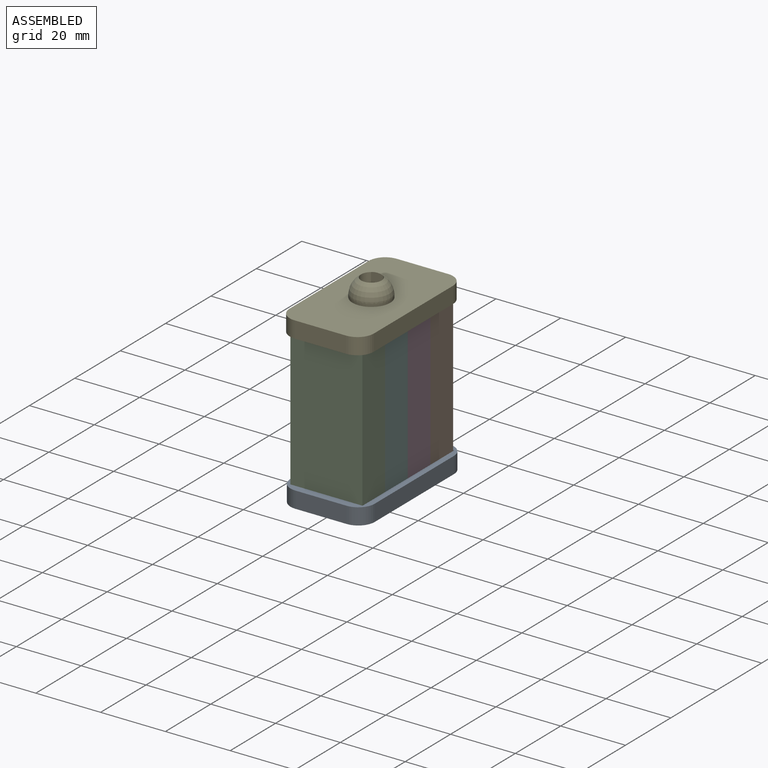
[diagram: assembled view]
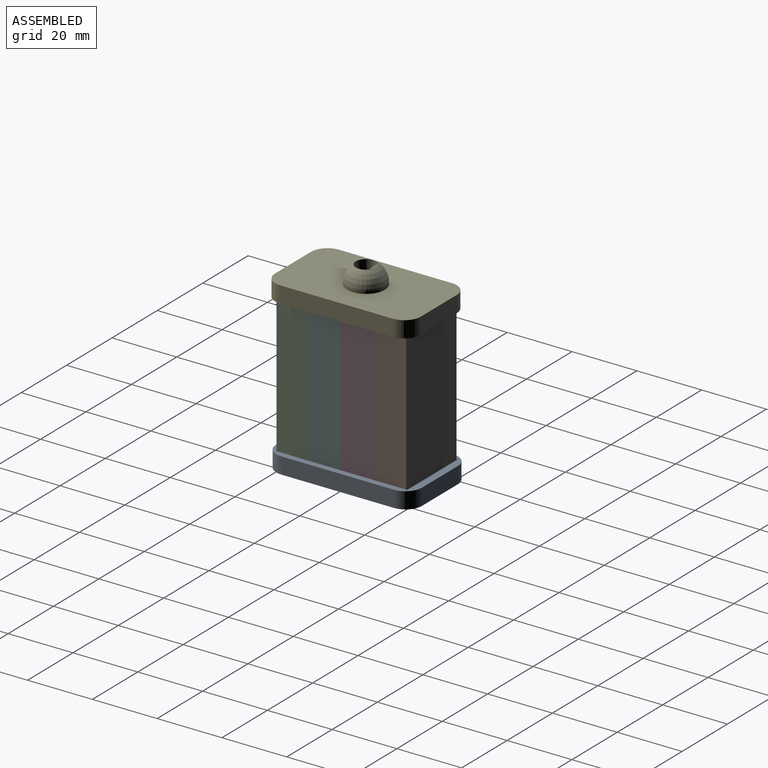
[diagram: assembled view, second angle]
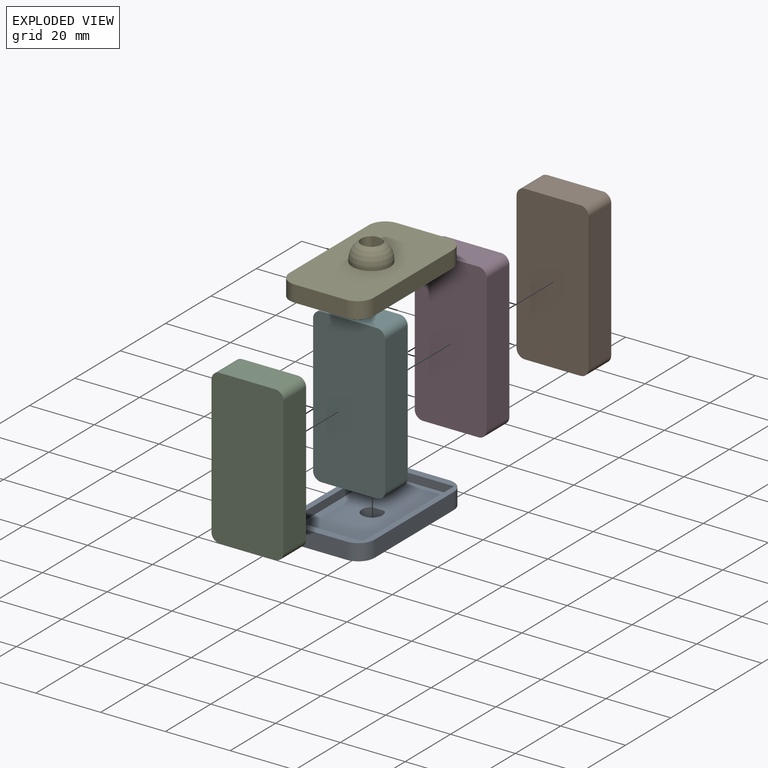
[diagram: exploded view]
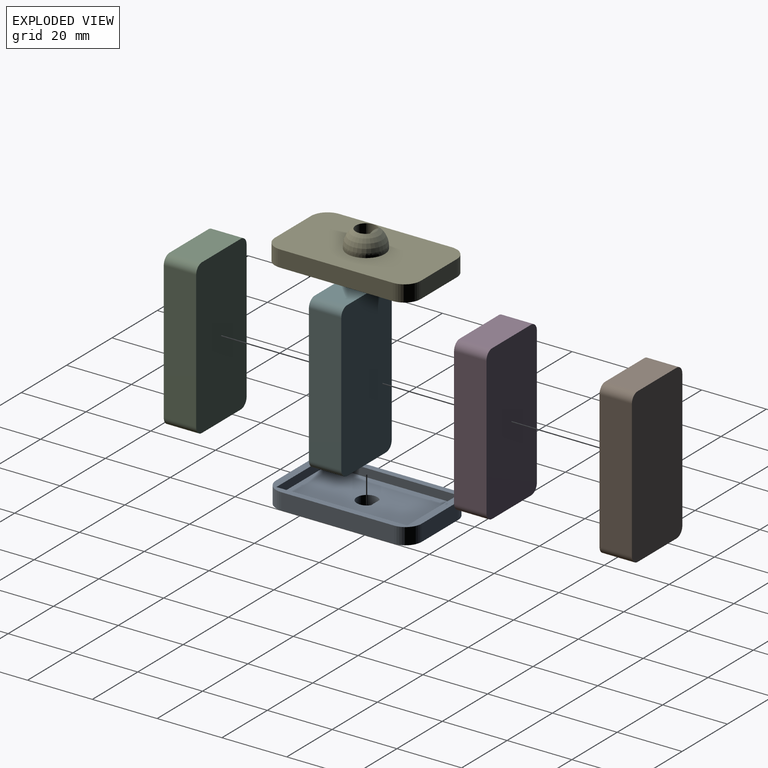
[diagram: exploded view, second angle]
ASSEMBLY  parts=6 mates=5
PART A: 19 faces, bbox 26.4x45.4x11.3 mm
  f0: plane 40.35x2.54mm, normal (-1,0,0), area 102.5mm2, adj f1,f2,f8,f12
  f1: plane 22.3x2.54mm, normal (0,-1,0), area 56.6mm2, adj f0,f3,f8,f12
  f2: plane 22.3x2.54mm, normal (0,1,0), area 56.6mm2, adj f0,f3,f8,f12
  f3: plane 40.35x2.54mm, normal (1,0,0), area 102.5mm2, adj f1,f2,f8,f12
  f4: plane 34.84x5.08mm, normal (-1,0,0), area 177mm2, adj f8,f9,f15,f16
  f5: plane 15.84x5.08mm, normal (0,-1,0), area 80.5mm2, adj f8,f9,f16,f17
  f6: plane 34.84x5.08mm, normal (1,0,0), area 177mm2, adj f8,f9,f17,f18
  f7: plane 15.84x5.08mm, normal (0,1,0), area 80.5mm2, adj f8,f9,f15,f18
  f8: plane 45x26mm, normal (0,0,1), area 248mm2, adj f0,f1,f2,f3,f4,f5,f6,f7
  f9: plane 45x26mm, normal (0,0,-1), area 1040.8mm2, adj f4,f5,f6,f7,f13,f15,f16,f17
  f10: cylinder r=3.17mm len=8.06mm, axis (0,0,-1), area 127.9mm2, adj f11,f12,f14
  f11: plane 8.8x4.21mm, normal (0,-1,0), area 31.6mm2, adj f10,f12,f14
  f12: plane 40.35x22.3mm, normal (0,0,1), area 869.8mm2, adj f0,f1,f2,f3,f10,f11
  f13: cylinder r=5.84mm len=11.67mm, axis (0,0,1), area 27.9mm2, adj f9,f14
  f14: torus R=0.25mm, axis (0,0,1), area 177.4mm2, adj f10,f11,f13
  f15: cylinder r=5.08mm len=5.08mm, axis (0,0,1), area 40.5mm2, adj f4,f7,f8,f9
  f16: cylinder r=5.08mm len=5.08mm, axis (0,0,-1), area 40.5mm2, adj f4,f5,f8,f9
  f17: cylinder r=5.08mm len=5.08mm, axis (0,0,1), area 40.5mm2, adj f5,f6,f8,f9
  f18: cylinder r=5.08mm len=5.08mm, axis (0,0,-1), area 40.5mm2, adj f6,f7,f8,f9
PART B: 10 faces, bbox 22.2x47.6x10 mm
  f0: plane 42.55x10mm, normal (-1,0,0), area 425.4mm2, adj f4,f5,f6,f7
  f1: plane 17.15x10mm, normal (0,-1,0), area 171.5mm2, adj f4,f5,f7,f8
  f2: plane 42.55x10mm, normal (1,0,0), area 425.4mm2, adj f4,f5,f8,f9
  f3: plane 17.15x10mm, normal (0,1,0), area 171.5mm2, adj f4,f5,f6,f9
  f4: plane 47.63x22.23mm, normal (0,0,1), area 1052.9mm2, adj f0,f1,f2,f3,f6,f7,f8,f9
  f5: plane 47.63x22.23mm, normal (0,0,-1), area 1052.9mm2, adj f0,f1,f2,f3,f6,f7,f8,f9
  f6: cylinder r=2.54mm len=10mm, axis (0,0,1), area 39.9mm2, adj f0,f3,f4,f5
  f7: cylinder r=2.54mm len=10mm, axis (0,0,-1), area 39.9mm2, adj f0,f1,f4,f5
  f8: cylinder r=2.54mm len=10mm, axis (0,0,1), area 39.9mm2, adj f1,f2,f4,f5
  f9: cylinder r=2.54mm len=10mm, axis (0,0,-1), area 39.9mm2, adj f2,f3,f4,f5
PART C: same geometry as B
PART D: same geometry as B
PART E: same geometry as A
PART F: same geometry as B
PLACE A t=(-20.5,0.43,13.82)mm
PLACE B rot(axis=(1,0,0),90deg) t=(-20.5,20.26,40.17)mm
PLACE C rot(axis=(1,0,0),90deg) t=(-20.5,-9.74,40.17)mm
PLACE D rot(axis=(1,0,0),90deg) t=(-20.5,10.26,40.17)mm
PLACE E rot(axis=(0,1,0),180deg) t=(-20.5,0.08,66.52)mm
PLACE F rot(axis=(1,0,0),90deg) t=(-20.5,0.26,40.17)mm
MATE fastened C.f4 <-> A.f2  axis (0,-1,0) through (-20.5,-19.74,16.36)mm
MATE fastened B.f4 <-> D.f5  axis (0,-1,0) through (-20.5,10.26,40.17)mm
MATE fastened D.f4 <-> F.f5  axis (0,-1,0) through (-20.5,0.26,40.17)mm
MATE fastened F.f4 <-> C.f5  axis (0,-1,0) through (-20.5,-9.74,40.17)mm
MATE fastened E.f1 <-> B.f5  axis (0,-1,0) through (-20.5,20.26,63.98)mm
